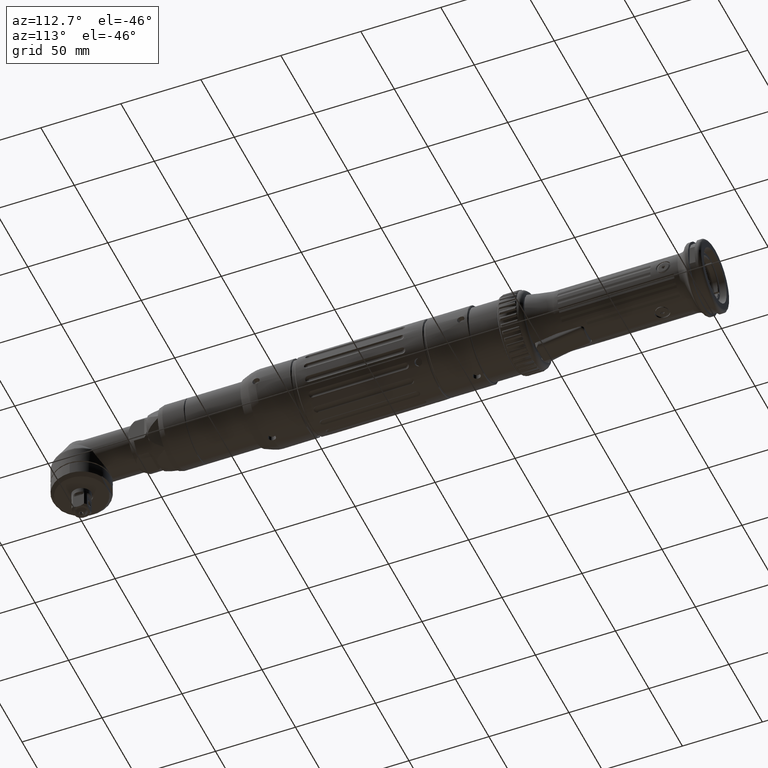
[diagram: clean part render]
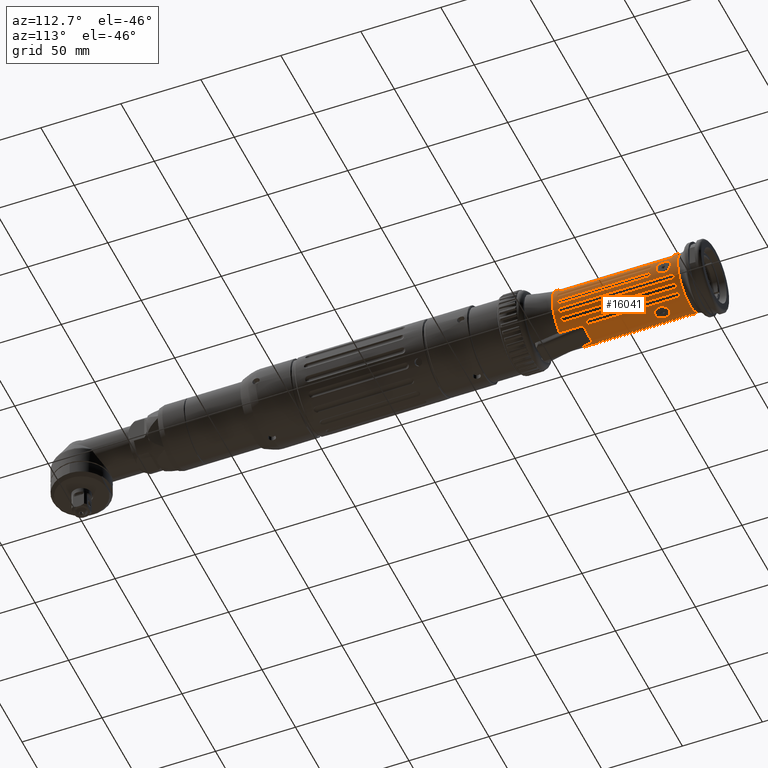
[diagram: same view with one face highlighted and labeled with its STEP entity id]
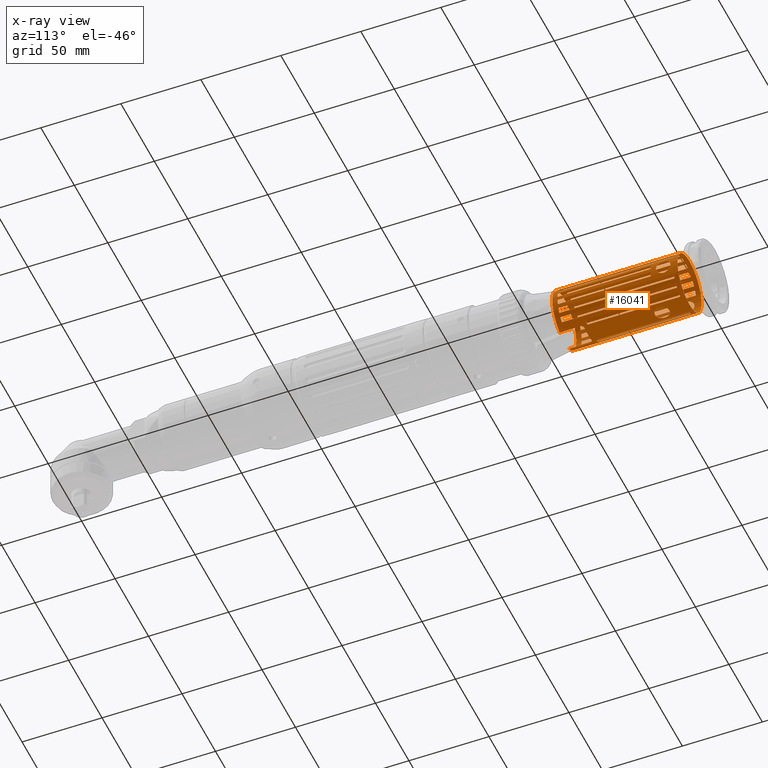
[diagram: x-ray of the same camera — body ghosted, the highlighted face saturated]
A machine part, auxiliary view. The second image highlights one B-rep face of the part: STEP entity #16041.
The next image is the same camera in x-ray: the body ghosted, the highlighted face saturated — about 0% of this face is hidden behind the body in this view.
In plain terms, the highlighted cylindrical surface (bore or boss wall) has radius 18 mm, axis along (-0, 1, -0).
Its self-contained STEP definition (entity closure, byte-faithful):
#788=LINE('',#27451,#1650);
#789=LINE('',#27453,#1651);
#790=LINE('',#27479,#1652);
#791=LINE('',#27480,#1653);
#792=LINE('',#27600,#1654);
#793=LINE('',#27604,#1655);
#794=LINE('',#27608,#1656);
#795=LINE('',#27612,#1657);
#796=LINE('',#27616,#1658);
#797=LINE('',#27620,#1659);
#798=LINE('',#27624,#1660);
#799=LINE('',#27628,#1661);
#800=LINE('',#27632,#1662);
#801=LINE('',#27636,#1663);
#802=LINE('',#27640,#1664);
#803=LINE('',#27644,#1665);
#804=LINE('',#27648,#1666);
#805=LINE('',#27652,#1667);
#806=LINE('',#27656,#1668);
#807=LINE('',#27660,#1669);
#808=LINE('',#27664,#1670);
#809=LINE('',#27668,#1671);
#810=LINE('',#27672,#1672);
#811=LINE('',#27676,#1673);
#812=LINE('',#27680,#1674);
#813=LINE('',#27684,#1675);
#814=LINE('',#27688,#1676);
#815=LINE('',#27692,#1677);
#816=LINE('',#27696,#1678);
#817=LINE('',#27700,#1679);
#818=LINE('',#27704,#1680);
#819=LINE('',#27708,#1681);
#820=LINE('',#27712,#1682);
#821=LINE('',#27716,#1683);
#822=LINE('',#27720,#1684);
#823=LINE('',#27724,#1685);
#824=LINE('',#27728,#1686);
#825=LINE('',#27732,#1687);
#826=LINE('',#27736,#1688);
#827=LINE('',#27740,#1689);
#1650=VECTOR('',#21289,10.);
#1651=VECTOR('',#21290,10.);
#1652=VECTOR('',#21293,10.);
#1653=VECTOR('',#21294,10.);
#1654=VECTOR('',#21295,10.);
#1655=VECTOR('',#21298,10.);
#1656=VECTOR('',#21301,10.);
#1657=VECTOR('',#21304,10.);
#1658=VECTOR('',#21307,10.);
#1659=VECTOR('',#21310,10.);
#1660=VECTOR('',#21313,10.);
#1661=VECTOR('',#21316,10.);
#1662=VECTOR('',#21319,10.);
#1663=VECTOR('',#21322,10.);
#1664=VECTOR('',#21325,10.);
#1665=VECTOR('',#21328,10.);
#1666=VECTOR('',#21331,10.);
#1667=VECTOR('',#21334,10.);
#1668=VECTOR('',#21337,10.);
#1669=VECTOR('',#21340,10.);
#1670=VECTOR('',#21343,10.);
#1671=VECTOR('',#21346,10.);
#1672=VECTOR('',#21349,10.);
#1673=VECTOR('',#21352,10.);
#1674=VECTOR('',#21355,10.);
#1675=VECTOR('',#21358,10.);
#1676=VECTOR('',#21361,10.);
#1677=VECTOR('',#21364,10.);
#1678=VECTOR('',#21367,10.);
#1679=VECTOR('',#21370,10.);
#1680=VECTOR('',#21373,10.);
#1681=VECTOR('',#21376,10.);
#1682=VECTOR('',#21379,10.);
#1683=VECTOR('',#21382,10.);
#1684=VECTOR('',#21385,10.);
#1685=VECTOR('',#21388,10.);
#1686=VECTOR('',#21391,10.);
#1687=VECTOR('',#21394,10.);
#1688=VECTOR('',#21397,10.);
#1689=VECTOR('',#21400,10.);
#2150=B_SPLINE_CURVE_WITH_KNOTS('',3,(#27455,#27456,#27457,#27458,#27459,
#27460,#27461,#27462,#27463,#27464),.UNSPECIFIED.,.F.,.F.,(4,2,2,2,4),(0.305642386572825,
0.385374742263691,0.465107097954556,0.540499165419982,0.615891232885407),
 .UNSPECIFIED.);
#2151=B_SPLINE_CURVE_WITH_KNOTS('',3,(#27468,#27469,#27470,#27471,#27472,
#27473,#27474,#27475,#27476,#27477),.UNSPECIFIED.,.F.,.F.,(4,2,2,2,4),(0.615891232885407,
0.691283300350833,0.766675367816259,0.846407723507124,0.926140079197989),
 .UNSPECIFIED.);
#2152=B_SPLINE_CURVE_WITH_KNOTS('',3,(#27483,#27484,#27485,#27486,#27487,
#27488,#27489,#27490,#27491,#27492,#27493,#27494,#27495,#27496,#27497,#27498,
#27499,#27500),.UNSPECIFIED.,.F.,.F.,(4,2,2,2,2,2,2,2,4),(0.681159195238395,
0.851437088441764,1.02171498164513,1.19201668606096,1.36231839047679,1.53262009489262,
1.70292179930845,1.87319969251182,2.04347758571518),.UNSPECIFIED.);
#2153=B_SPLINE_CURVE_WITH_KNOTS('',3,(#27501,#27502,#27503,#27504,#27505,
#27506,#27507,#27508,#27509,#27510,#27511,#27512,#27513,#27514,#27515,#27516,
#27517,#27518,#27519),.UNSPECIFIED.,.F.,.F.,(4,2,2,2,3,2,2,2,4),(2.04347758571518,
2.21375547891855,2.38403337212192,2.55433507653775,2.72463678095358,2.89493848536941,
3.06524018978524,3.23551808298861,3.40579597619198),.UNSPECIFIED.);
#2154=B_SPLINE_CURVE_WITH_KNOTS('',3,(#27522,#27523,#27524,#27525,#27526,
#27527,#27528,#27529,#27530,#27531,#27532,#27533,#27534,#27535,#27536,#27537,
#27538,#27539),.UNSPECIFIED.,.F.,.F.,(4,2,2,2,2,2,2,2,4),(0.681159195238395,
0.851437088441765,1.02171498164513,1.19201668606096,1.36231839047679,1.53262009489262,
1.70292179930844,1.87319969251181,2.04347758571518),.UNSPECIFIED.);
#2155=B_SPLINE_CURVE_WITH_KNOTS('',3,(#27540,#27541,#27542,#27543,#27544,
#27545,#27546,#27547,#27548,#27549,#27550,#27551,#27552,#27553,#27554,#27555,
#27556,#27557,#27558),.UNSPECIFIED.,.F.,.F.,(4,2,2,2,3,2,2,2,4),(2.04347758571518,
2.21375547891855,2.38403337212192,2.55433507653775,2.72463678095358,2.89493848536941,
3.06524018978523,3.2355180829886,3.40579597619197),.UNSPECIFIED.);
#2156=B_SPLINE_CURVE_WITH_KNOTS('',3,(#27561,#27562,#27563,#27564,#27565,
#27566,#27567,#27568,#27569,#27570,#27571,#27572,#27573,#27574,#27575,#27576,
#27577,#27578),.UNSPECIFIED.,.F.,.F.,(4,2,2,2,2,2,2,2,4),(0.681159195238395,
0.851437088441764,1.02171498164513,1.19201668606096,1.36231839047679,1.53262009489262,
1.70292179930844,1.87319969251181,2.04347758571518),.UNSPECIFIED.);
#2157=B_SPLINE_CURVE_WITH_KNOTS('',3,(#27579,#27580,#27581,#27582,#27583,
#27584,#27585,#27586,#27587,#27588,#27589,#27590,#27591,#27592,#27593,#27594,
#27595,#27596,#27597),.UNSPECIFIED.,.F.,.F.,(4,2,2,2,3,2,2,2,4),(2.04347758571518,
2.21375547891855,2.38403337212192,2.55433507653775,2.72463678095358,2.89493848536941,
3.06524018978523,3.2355180829886,3.40579597619197),.UNSPECIFIED.);
#2332=CYLINDRICAL_SURFACE('',#17629,18.);
#2613=FACE_BOUND('',#4371,.T.);
#2614=FACE_BOUND('',#4372,.T.);
#2615=FACE_BOUND('',#4373,.T.);
#2616=FACE_BOUND('',#4374,.T.);
#2617=FACE_BOUND('',#4375,.T.);
#2618=FACE_BOUND('',#4376,.T.);
#2619=FACE_BOUND('',#4377,.T.);
#2620=FACE_BOUND('',#4378,.T.);
#2621=FACE_BOUND('',#4379,.T.);
#2622=FACE_BOUND('',#4380,.T.);
#2623=FACE_BOUND('',#4381,.T.);
#2624=FACE_BOUND('',#4382,.T.);
#2625=FACE_BOUND('',#4383,.T.);
#2626=FACE_BOUND('',#4384,.T.);
#2627=FACE_BOUND('',#4385,.T.);
#2628=FACE_BOUND('',#4386,.T.);
#2629=FACE_BOUND('',#4387,.T.);
#2630=FACE_BOUND('',#4388,.T.);
#2631=FACE_BOUND('',#4389,.T.);
#2632=FACE_BOUND('',#4390,.T.);
#2633=FACE_BOUND('',#4391,.T.);
#2634=FACE_BOUND('',#4392,.T.);
#3288=FACE_OUTER_BOUND('',#4370,.T.);
#4370=EDGE_LOOP('',(#11940,#11941,#11942,#11943,#11944,#11945,#11946,#11947));
#4371=EDGE_LOOP('',(#11948,#11949));
#4372=EDGE_LOOP('',(#11950,#11951));
#4373=EDGE_LOOP('',(#11952,#11953));
#4374=EDGE_LOOP('',(#11954,#11955,#11956,#11957));
#4375=EDGE_LOOP('',(#11958,#11959,#11960,#11961));
#4376=EDGE_LOOP('',(#11962,#11963,#11964,#11965));
#4377=EDGE_LOOP('',(#11966,#11967,#11968,#11969));
#4378=EDGE_LOOP('',(#11970,#11971,#11972,#11973));
#4379=EDGE_LOOP('',(#11974,#11975,#11976,#11977));
#4380=EDGE_LOOP('',(#11978,#11979,#11980,#11981));
#4381=EDGE_LOOP('',(#11982,#11983,#11984,#11985));
#4382=EDGE_LOOP('',(#11986,#11987,#11988,#11989));
#4383=EDGE_LOOP('',(#11990,#11991,#11992,#11993));
#4384=EDGE_LOOP('',(#11994,#11995,#11996,#11997));
#4385=EDGE_LOOP('',(#11998,#11999,#12000,#12001));
#4386=EDGE_LOOP('',(#12002,#12003,#12004,#12005));
#4387=EDGE_LOOP('',(#12006,#12007,#12008,#12009));
#4388=EDGE_LOOP('',(#12010,#12011,#12012,#12013));
#4389=EDGE_LOOP('',(#12014,#12015,#12016,#12017));
#4390=EDGE_LOOP('',(#12018,#12019,#12020,#12021));
#4391=EDGE_LOOP('',(#12022,#12023,#12024,#12025));
#4392=EDGE_LOOP('',(#12026));
#5565=CIRCLE('',#17621,18.);
#5569=CIRCLE('',#17630,18.);
#5570=CIRCLE('',#17631,18.);
#5571=CIRCLE('',#17632,18.);
#5572=CIRCLE('',#17633,18.);
#5573=CIRCLE('',#17634,18.);
#5574=CIRCLE('',#17635,18.);
#5575=CIRCLE('',#17636,18.);
#5576=CIRCLE('',#17637,18.);
#5577=CIRCLE('',#17638,18.);
#5578=CIRCLE('',#17639,18.);
#5579=CIRCLE('',#17640,18.);
#5580=CIRCLE('',#17641,18.);
#5581=CIRCLE('',#17642,18.);
#5582=CIRCLE('',#17643,18.);
#5583=CIRCLE('',#17644,18.);
#5584=CIRCLE('',#17645,18.);
#5585=CIRCLE('',#17646,18.);
#5586=CIRCLE('',#17647,18.);
#5587=CIRCLE('',#17648,18.);
#5588=CIRCLE('',#17649,18.);
#5589=CIRCLE('',#17650,18.);
#5590=CIRCLE('',#17651,18.);
#5591=CIRCLE('',#17652,18.);
#5592=CIRCLE('',#17653,18.);
#5593=CIRCLE('',#17654,18.);
#5594=CIRCLE('',#17655,18.);
#5595=CIRCLE('',#17656,18.);
#5596=CIRCLE('',#17657,18.);
#5597=CIRCLE('',#17658,18.);
#5598=CIRCLE('',#17659,18.);
#5599=CIRCLE('',#17660,18.);
#5600=CIRCLE('',#17661,18.);
#5601=CIRCLE('',#17662,18.);
#5602=CIRCLE('',#17663,18.);
#5603=CIRCLE('',#17664,18.);
#5604=CIRCLE('',#17665,18.);
#5605=CIRCLE('',#17666,18.);
#5606=CIRCLE('',#17667,18.);
#6822=VERTEX_POINT('',#27401);
#6831=VERTEX_POINT('',#27447);
#6832=VERTEX_POINT('',#27448);
#6833=VERTEX_POINT('',#27450);
#6834=VERTEX_POINT('',#27452);
#6835=VERTEX_POINT('',#27454);
#6836=VERTEX_POINT('',#27465);
#6837=VERTEX_POINT('',#27467);
#6838=VERTEX_POINT('',#27478);
#6839=VERTEX_POINT('',#27481);
#6840=VERTEX_POINT('',#27482);
#6841=VERTEX_POINT('',#27520);
#6842=VERTEX_POINT('',#27521);
#6843=VERTEX_POINT('',#27559);
#6844=VERTEX_POINT('',#27560);
#6845=VERTEX_POINT('',#27598);
#6846=VERTEX_POINT('',#27599);
#6847=VERTEX_POINT('',#27601);
#6848=VERTEX_POINT('',#27603);
#6849=VERTEX_POINT('',#27606);
#6850=VERTEX_POINT('',#27607);
#6851=VERTEX_POINT('',#27609);
#6852=VERTEX_POINT('',#27611);
#6853=VERTEX_POINT('',#27614);
#6854=VERTEX_POINT('',#27615);
#6855=VERTEX_POINT('',#27617);
#6856=VERTEX_POINT('',#27619);
#6857=VERTEX_POINT('',#27622);
#6858=VERTEX_POINT('',#27623);
#6859=VERTEX_POINT('',#27625);
#6860=VERTEX_POINT('',#27627);
#6861=VERTEX_POINT('',#27630);
#6862=VERTEX_POINT('',#27631);
#6863=VERTEX_POINT('',#27633);
#6864=VERTEX_POINT('',#27635);
#6865=VERTEX_POINT('',#27638);
#6866=VERTEX_POINT('',#27639);
#6867=VERTEX_POINT('',#27641);
#6868=VERTEX_POINT('',#27643);
#6869=VERTEX_POINT('',#27646);
#6870=VERTEX_POINT('',#27647);
#6871=VERTEX_POINT('',#27649);
#6872=VERTEX_POINT('',#27651);
#6873=VERTEX_POINT('',#27654);
#6874=VERTEX_POINT('',#27655);
#6875=VERTEX_POINT('',#27657);
#6876=VERTEX_POINT('',#27659);
#6877=VERTEX_POINT('',#27662);
#6878=VERTEX_POINT('',#27663);
#6879=VERTEX_POINT('',#27665);
#6880=VERTEX_POINT('',#27667);
#6881=VERTEX_POINT('',#27670);
#6882=VERTEX_POINT('',#27671);
#6883=VERTEX_POINT('',#27673);
#6884=VERTEX_POINT('',#27675);
#6885=VERTEX_POINT('',#27678);
#6886=VERTEX_POINT('',#27679);
#6887=VERTEX_POINT('',#27681);
#6888=VERTEX_POINT('',#27683);
#6889=VERTEX_POINT('',#27686);
#6890=VERTEX_POINT('',#27687);
#6891=VERTEX_POINT('',#27689);
#6892=VERTEX_POINT('',#27691);
#6893=VERTEX_POINT('',#27694);
#6894=VERTEX_POINT('',#27695);
#6895=VERTEX_POINT('',#27697);
#6896=VERTEX_POINT('',#27699);
#6897=VERTEX_POINT('',#27702);
#6898=VERTEX_POINT('',#27703);
#6899=VERTEX_POINT('',#27705);
#6900=VERTEX_POINT('',#27707);
#6901=VERTEX_POINT('',#27710);
#6902=VERTEX_POINT('',#27711);
#6903=VERTEX_POINT('',#27713);
#6904=VERTEX_POINT('',#27715);
#6905=VERTEX_POINT('',#27718);
#6906=VERTEX_POINT('',#27719);
#6907=VERTEX_POINT('',#27721);
#6908=VERTEX_POINT('',#27723);
#6909=VERTEX_POINT('',#27726);
#6910=VERTEX_POINT('',#27727);
#6911=VERTEX_POINT('',#27729);
#6912=VERTEX_POINT('',#27731);
#6913=VERTEX_POINT('',#27734);
#6914=VERTEX_POINT('',#27735);
#6915=VERTEX_POINT('',#27737);
#6916=VERTEX_POINT('',#27739);
#8672=EDGE_CURVE('',#6822,#6822,#5565,.T.);
#8686=EDGE_CURVE('',#6831,#6832,#5569,.T.);
#8687=EDGE_CURVE('',#6831,#6833,#788,.T.);
#8688=EDGE_CURVE('',#6833,#6834,#789,.T.);
#8689=EDGE_CURVE('',#6835,#6834,#2150,.T.);
#8690=EDGE_CURVE('',#6835,#6836,#5570,.T.);
#8691=EDGE_CURVE('',#6837,#6836,#2151,.T.);
#8692=EDGE_CURVE('',#6837,#6838,#790,.T.);
#8693=EDGE_CURVE('',#6838,#6832,#791,.T.);
#8694=EDGE_CURVE('',#6839,#6840,#2152,.T.);
#8695=EDGE_CURVE('',#6840,#6839,#2153,.T.);
#8696=EDGE_CURVE('',#6841,#6842,#2154,.T.);
#8697=EDGE_CURVE('',#6842,#6841,#2155,.T.);
#8698=EDGE_CURVE('',#6843,#6844,#2156,.T.);
#8699=EDGE_CURVE('',#6844,#6843,#2157,.T.);
#8700=EDGE_CURVE('',#6845,#6846,#792,.T.);
#8701=EDGE_CURVE('',#6846,#6847,#5571,.T.);
#8702=EDGE_CURVE('',#6847,#6848,#793,.T.);
#8703=EDGE_CURVE('',#6848,#6845,#5572,.T.);
#8704=EDGE_CURVE('',#6849,#6850,#794,.T.);
#8705=EDGE_CURVE('',#6850,#6851,#5573,.T.);
#8706=EDGE_CURVE('',#6851,#6852,#795,.T.);
#8707=EDGE_CURVE('',#6852,#6849,#5574,.T.);
#8708=EDGE_CURVE('',#6853,#6854,#796,.T.);
#8709=EDGE_CURVE('',#6854,#6855,#5575,.T.);
#8710=EDGE_CURVE('',#6855,#6856,#797,.T.);
#8711=EDGE_CURVE('',#6856,#6853,#5576,.T.);
#8712=EDGE_CURVE('',#6857,#6858,#798,.T.);
#8713=EDGE_CURVE('',#6858,#6859,#5577,.T.);
#8714=EDGE_CURVE('',#6859,#6860,#799,.T.);
#8715=EDGE_CURVE('',#6860,#6857,#5578,.T.);
#8716=EDGE_CURVE('',#6861,#6862,#800,.T.);
#8717=EDGE_CURVE('',#6862,#6863,#5579,.T.);
#8718=EDGE_CURVE('',#6863,#6864,#801,.T.);
#8719=EDGE_CURVE('',#6864,#6861,#5580,.T.);
#8720=EDGE_CURVE('',#6865,#6866,#802,.T.);
#8721=EDGE_CURVE('',#6866,#6867,#5581,.T.);
#8722=EDGE_CURVE('',#6867,#6868,#803,.T.);
#8723=EDGE_CURVE('',#6868,#6865,#5582,.T.);
#8724=EDGE_CURVE('',#6869,#6870,#804,.T.);
#8725=EDGE_CURVE('',#6870,#6871,#5583,.T.);
#8726=EDGE_CURVE('',#6871,#6872,#805,.T.);
#8727=EDGE_CURVE('',#6872,#6869,#5584,.T.);
#8728=EDGE_CURVE('',#6873,#6874,#806,.T.);
#8729=EDGE_CURVE('',#6874,#6875,#5585,.T.);
#8730=EDGE_CURVE('',#6875,#6876,#807,.T.);
#8731=EDGE_CURVE('',#6876,#6873,#5586,.T.);
#8732=EDGE_CURVE('',#6877,#6878,#808,.T.);
#8733=EDGE_CURVE('',#6878,#6879,#5587,.T.);
#8734=EDGE_CURVE('',#6879,#6880,#809,.T.);
#8735=EDGE_CURVE('',#6880,#6877,#5588,.T.);
#8736=EDGE_CURVE('',#6881,#6882,#810,.T.);
#8737=EDGE_CURVE('',#6882,#6883,#5589,.T.);
#8738=EDGE_CURVE('',#6883,#6884,#811,.T.);
#8739=EDGE_CURVE('',#6884,#6881,#5590,.T.);
#8740=EDGE_CURVE('',#6885,#6886,#812,.T.);
#8741=EDGE_CURVE('',#6886,#6887,#5591,.T.);
#8742=EDGE_CURVE('',#6887,#6888,#813,.T.);
#8743=EDGE_CURVE('',#6888,#6885,#5592,.T.);
#8744=EDGE_CURVE('',#6889,#6890,#814,.T.);
#8745=EDGE_CURVE('',#6890,#6891,#5593,.T.);
#8746=EDGE_CURVE('',#6891,#6892,#815,.T.);
#8747=EDGE_CURVE('',#6892,#6889,#5594,.T.);
#8748=EDGE_CURVE('',#6893,#6894,#816,.T.);
#8749=EDGE_CURVE('',#6894,#6895,#5595,.T.);
#8750=EDGE_CURVE('',#6895,#6896,#817,.T.);
#8751=EDGE_CURVE('',#6896,#6893,#5596,.T.);
#8752=EDGE_CURVE('',#6897,#6898,#818,.T.);
#8753=EDGE_CURVE('',#6898,#6899,#5597,.T.);
#8754=EDGE_CURVE('',#6899,#6900,#819,.T.);
#8755=EDGE_CURVE('',#6900,#6897,#5598,.T.);
#8756=EDGE_CURVE('',#6901,#6902,#820,.T.);
#8757=EDGE_CURVE('',#6902,#6903,#5599,.T.);
#8758=EDGE_CURVE('',#6903,#6904,#821,.T.);
#8759=EDGE_CURVE('',#6904,#6901,#5600,.T.);
#8760=EDGE_CURVE('',#6905,#6906,#822,.T.);
#8761=EDGE_CURVE('',#6906,#6907,#5601,.T.);
#8762=EDGE_CURVE('',#6907,#6908,#823,.T.);
#8763=EDGE_CURVE('',#6908,#6905,#5602,.T.);
#8764=EDGE_CURVE('',#6909,#6910,#824,.T.);
#8765=EDGE_CURVE('',#6910,#6911,#5603,.T.);
#8766=EDGE_CURVE('',#6911,#6912,#825,.T.);
#8767=EDGE_CURVE('',#6912,#6909,#5604,.T.);
#8768=EDGE_CURVE('',#6913,#6914,#826,.T.);
#8769=EDGE_CURVE('',#6914,#6915,#5605,.T.);
#8770=EDGE_CURVE('',#6915,#6916,#827,.T.);
#8771=EDGE_CURVE('',#6916,#6913,#5606,.T.);
#11940=ORIENTED_EDGE('',*,*,#8686,.F.);
#11941=ORIENTED_EDGE('',*,*,#8687,.T.);
#11942=ORIENTED_EDGE('',*,*,#8688,.T.);
#11943=ORIENTED_EDGE('',*,*,#8689,.F.);
#11944=ORIENTED_EDGE('',*,*,#8690,.T.);
#11945=ORIENTED_EDGE('',*,*,#8691,.F.);
#11946=ORIENTED_EDGE('',*,*,#8692,.T.);
#11947=ORIENTED_EDGE('',*,*,#8693,.T.);
#11948=ORIENTED_EDGE('',*,*,#8694,.T.);
#11949=ORIENTED_EDGE('',*,*,#8695,.T.);
#11950=ORIENTED_EDGE('',*,*,#8696,.T.);
#11951=ORIENTED_EDGE('',*,*,#8697,.T.);
#11952=ORIENTED_EDGE('',*,*,#8698,.T.);
#11953=ORIENTED_EDGE('',*,*,#8699,.T.);
#11954=ORIENTED_EDGE('',*,*,#8700,.T.);
#11955=ORIENTED_EDGE('',*,*,#8701,.T.);
#11956=ORIENTED_EDGE('',*,*,#8702,.T.);
#11957=ORIENTED_EDGE('',*,*,#8703,.T.);
#11958=ORIENTED_EDGE('',*,*,#8704,.T.);
#11959=ORIENTED_EDGE('',*,*,#8705,.T.);
#11960=ORIENTED_EDGE('',*,*,#8706,.T.);
#11961=ORIENTED_EDGE('',*,*,#8707,.T.);
#11962=ORIENTED_EDGE('',*,*,#8708,.T.);
#11963=ORIENTED_EDGE('',*,*,#8709,.T.);
#11964=ORIENTED_EDGE('',*,*,#8710,.T.);
#11965=ORIENTED_EDGE('',*,*,#8711,.T.);
#11966=ORIENTED_EDGE('',*,*,#8712,.T.);
#11967=ORIENTED_EDGE('',*,*,#8713,.T.);
#11968=ORIENTED_EDGE('',*,*,#8714,.T.);
#11969=ORIENTED_EDGE('',*,*,#8715,.T.);
#11970=ORIENTED_EDGE('',*,*,#8716,.T.);
#11971=ORIENTED_EDGE('',*,*,#8717,.T.);
#11972=ORIENTED_EDGE('',*,*,#8718,.T.);
#11973=ORIENTED_EDGE('',*,*,#8719,.T.);
#11974=ORIENTED_EDGE('',*,*,#8720,.T.);
#11975=ORIENTED_EDGE('',*,*,#8721,.T.);
#11976=ORIENTED_EDGE('',*,*,#8722,.T.);
#11977=ORIENTED_EDGE('',*,*,#8723,.T.);
#11978=ORIENTED_EDGE('',*,*,#8724,.T.);
#11979=ORIENTED_EDGE('',*,*,#8725,.T.);
#11980=ORIENTED_EDGE('',*,*,#8726,.T.);
#11981=ORIENTED_EDGE('',*,*,#8727,.T.);
#11982=ORIENTED_EDGE('',*,*,#8728,.T.);
#11983=ORIENTED_EDGE('',*,*,#8729,.T.);
#11984=ORIENTED_EDGE('',*,*,#8730,.T.);
#11985=ORIENTED_EDGE('',*,*,#8731,.T.);
#11986=ORIENTED_EDGE('',*,*,#8732,.T.);
#11987=ORIENTED_EDGE('',*,*,#8733,.T.);
#11988=ORIENTED_EDGE('',*,*,#8734,.T.);
#11989=ORIENTED_EDGE('',*,*,#8735,.T.);
#11990=ORIENTED_EDGE('',*,*,#8736,.T.);
#11991=ORIENTED_EDGE('',*,*,#8737,.T.);
#11992=ORIENTED_EDGE('',*,*,#8738,.T.);
#11993=ORIENTED_EDGE('',*,*,#8739,.T.);
#11994=ORIENTED_EDGE('',*,*,#8740,.T.);
#11995=ORIENTED_EDGE('',*,*,#8741,.T.);
#11996=ORIENTED_EDGE('',*,*,#8742,.T.);
#11997=ORIENTED_EDGE('',*,*,#8743,.T.);
#11998=ORIENTED_EDGE('',*,*,#8744,.T.);
#11999=ORIENTED_EDGE('',*,*,#8745,.T.);
#12000=ORIENTED_EDGE('',*,*,#8746,.T.);
#12001=ORIENTED_EDGE('',*,*,#8747,.T.);
#12002=ORIENTED_EDGE('',*,*,#8748,.T.);
#12003=ORIENTED_EDGE('',*,*,#8749,.T.);
#12004=ORIENTED_EDGE('',*,*,#8750,.T.);
#12005=ORIENTED_EDGE('',*,*,#8751,.T.);
#12006=ORIENTED_EDGE('',*,*,#8752,.T.);
#12007=ORIENTED_EDGE('',*,*,#8753,.T.);
#12008=ORIENTED_EDGE('',*,*,#8754,.T.);
#12009=ORIENTED_EDGE('',*,*,#8755,.T.);
#12010=ORIENTED_EDGE('',*,*,#8756,.T.);
#12011=ORIENTED_EDGE('',*,*,#8757,.T.);
#12012=ORIENTED_EDGE('',*,*,#8758,.T.);
#12013=ORIENTED_EDGE('',*,*,#8759,.T.);
#12014=ORIENTED_EDGE('',*,*,#8760,.T.);
#12015=ORIENTED_EDGE('',*,*,#8761,.T.);
#12016=ORIENTED_EDGE('',*,*,#8762,.T.);
#12017=ORIENTED_EDGE('',*,*,#8763,.T.);
#12018=ORIENTED_EDGE('',*,*,#8764,.T.);
#12019=ORIENTED_EDGE('',*,*,#8765,.T.);
#12020=ORIENTED_EDGE('',*,*,#8766,.T.);
#12021=ORIENTED_EDGE('',*,*,#8767,.T.);
#12022=ORIENTED_EDGE('',*,*,#8768,.T.);
#12023=ORIENTED_EDGE('',*,*,#8769,.T.);
#12024=ORIENTED_EDGE('',*,*,#8770,.T.);
#12025=ORIENTED_EDGE('',*,*,#8771,.T.);
#12026=ORIENTED_EDGE('',*,*,#8672,.F.);
#16041=ADVANCED_FACE('',(#3288,#2613,#2614,#2615,#2616,#2617,#2618,#2619,
#2620,#2621,#2622,#2623,#2624,#2625,#2626,#2627,#2628,#2629,#2630,#2631,
#2632,#2633,#2634),#2332,.T.);
#17621=AXIS2_PLACEMENT_3D('',#27402,#21261,#21262);
#17629=AXIS2_PLACEMENT_3D('',#27446,#21285,#21286);
#17630=AXIS2_PLACEMENT_3D('',#27449,#21287,#21288);
#17631=AXIS2_PLACEMENT_3D('',#27466,#21291,#21292);
#17632=AXIS2_PLACEMENT_3D('',#27602,#21296,#21297);
#17633=AXIS2_PLACEMENT_3D('',#27605,#21299,#21300);
#17634=AXIS2_PLACEMENT_3D('',#27610,#21302,#21303);
#17635=AXIS2_PLACEMENT_3D('',#27613,#21305,#21306);
#17636=AXIS2_PLACEMENT_3D('',#27618,#21308,#21309);
#17637=AXIS2_PLACEMENT_3D('',#27621,#21311,#21312);
#17638=AXIS2_PLACEMENT_3D('',#27626,#21314,#21315);
#17639=AXIS2_PLACEMENT_3D('',#27629,#21317,#21318);
#17640=AXIS2_PLACEMENT_3D('',#27634,#21320,#21321);
#17641=AXIS2_PLACEMENT_3D('',#27637,#21323,#21324);
#17642=AXIS2_PLACEMENT_3D('',#27642,#21326,#21327);
#17643=AXIS2_PLACEMENT_3D('',#27645,#21329,#21330);
#17644=AXIS2_PLACEMENT_3D('',#27650,#21332,#21333);
#17645=AXIS2_PLACEMENT_3D('',#27653,#21335,#21336);
#17646=AXIS2_PLACEMENT_3D('',#27658,#21338,#21339);
#17647=AXIS2_PLACEMENT_3D('',#27661,#21341,#21342);
#17648=AXIS2_PLACEMENT_3D('',#27666,#21344,#21345);
#17649=AXIS2_PLACEMENT_3D('',#27669,#21347,#21348);
#17650=AXIS2_PLACEMENT_3D('',#27674,#21350,#21351);
#17651=AXIS2_PLACEMENT_3D('',#27677,#21353,#21354);
#17652=AXIS2_PLACEMENT_3D('',#27682,#21356,#21357);
#17653=AXIS2_PLACEMENT_3D('',#27685,#21359,#21360);
#17654=AXIS2_PLACEMENT_3D('',#27690,#21362,#21363);
#17655=AXIS2_PLACEMENT_3D('',#27693,#21365,#21366);
#17656=AXIS2_PLACEMENT_3D('',#27698,#21368,#21369);
#17657=AXIS2_PLACEMENT_3D('',#27701,#21371,#21372);
#17658=AXIS2_PLACEMENT_3D('',#27706,#21374,#21375);
#17659=AXIS2_PLACEMENT_3D('',#27709,#21377,#21378);
#17660=AXIS2_PLACEMENT_3D('',#27714,#21380,#21381);
#17661=AXIS2_PLACEMENT_3D('',#27717,#21383,#21384);
#17662=AXIS2_PLACEMENT_3D('',#27722,#21386,#21387);
#17663=AXIS2_PLACEMENT_3D('',#27725,#21389,#21390);
#17664=AXIS2_PLACEMENT_3D('',#27730,#21392,#21393);
#17665=AXIS2_PLACEMENT_3D('',#27733,#21395,#21396);
#17666=AXIS2_PLACEMENT_3D('',#27738,#21398,#21399);
#17667=AXIS2_PLACEMENT_3D('',#27741,#21401,#21402);
#21261=DIRECTION('center_axis',(-6.34403086073544E-16,1.,-1.11372105191445E-15));
#21262=DIRECTION('ref_axis',(-1.,-6.34403086073555E-16,-9.79526914692858E-15));
#21285=DIRECTION('center_axis',(-6.34403086073544E-16,1.,-1.11372105191445E-15));
#21286=DIRECTION('ref_axis',(-9.79526914692858E-15,1.11372105191444E-15,
1.));
#21287=DIRECTION('center_axis',(6.34403086073544E-16,-1.,1.11372105191445E-15));
#21288=DIRECTION('ref_axis',(-1.01014308467154E-14,1.11372105191444E-15,
1.));
#21289=DIRECTION('',(-6.34403086073544E-16,1.,-1.11372105191445E-15));
#21290=DIRECTION('',(-6.34403086073544E-16,1.,-1.11372105191445E-15));
#21291=DIRECTION('center_axis',(-6.34403086073544E-16,1.,-1.11372105191445E-15));
#21292=DIRECTION('ref_axis',(-9.79526914692858E-15,1.11372105191444E-15,
1.));
#21293=DIRECTION('',(6.34403086073544E-16,-1.,1.11372105191445E-15));
#21294=DIRECTION('',(6.34403086073544E-16,-1.,1.11372105191445E-15));
#21295=DIRECTION('',(6.34403086073544E-16,-1.,1.11372105191445E-15));
#21296=DIRECTION('center_axis',(6.34403086073544E-16,-1.,1.11372105191445E-15));
#21297=DIRECTION('ref_axis',(-9.79526914692858E-15,1.11372105191444E-15,
1.));
#21298=DIRECTION('',(-6.34403086073544E-16,1.,-1.11372105191445E-15));
#21299=DIRECTION('center_axis',(-6.34403086073544E-16,1.,-1.11372105191445E-15));
#21300=DIRECTION('ref_axis',(-9.79526914692858E-15,1.11372105191444E-15,
1.));
#21301=DIRECTION('',(-6.34403086073544E-16,1.,-1.11372105191445E-15));
#21302=DIRECTION('center_axis',(-6.34403086073544E-16,1.,-1.11372105191445E-15));
#21303=DIRECTION('ref_axis',(-9.79526914692858E-15,1.11372105191444E-15,
1.));
#21304=DIRECTION('',(6.34403086073544E-16,-1.,1.11372105191445E-15));
#21305=DIRECTION('center_axis',(6.34403086073544E-16,-1.,1.11372105191445E-15));
#21306=DIRECTION('ref_axis',(-9.79526914692858E-15,1.11372105191444E-15,
1.));
#21307=DIRECTION('',(6.34403086073544E-16,-1.,1.11372105191445E-15));
#21308=DIRECTION('center_axis',(6.34403086073544E-16,-1.,1.11372105191445E-15));
#21309=DIRECTION('ref_axis',(-9.79526914692858E-15,1.11372105191444E-15,
1.));
#21310=DIRECTION('',(-6.34403086073544E-16,1.,-1.11372105191445E-15));
#21311=DIRECTION('center_axis',(-6.34403086073544E-16,1.,-1.11372105191445E-15));
#21312=DIRECTION('ref_axis',(-9.79526914692858E-15,1.11372105191444E-15,
1.));
#21313=DIRECTION('',(6.34403086073544E-16,-1.,1.11372105191445E-15));
#21314=DIRECTION('center_axis',(6.34403086073544E-16,-1.,1.11372105191445E-15));
#21315=DIRECTION('ref_axis',(-9.79526914692858E-15,1.11372105191444E-15,
1.));
#21316=DIRECTION('',(-6.34403086073544E-16,1.,-1.11372105191445E-15));
#21317=DIRECTION('center_axis',(-6.34403086073544E-16,1.,-1.11372105191445E-15));
#21318=DIRECTION('ref_axis',(-9.79526914692858E-15,1.11372105191444E-15,
1.));
#21319=DIRECTION('',(6.34403086073544E-16,-1.,1.11372105191445E-15));
#21320=DIRECTION('center_axis',(6.34403086073544E-16,-1.,1.11372105191445E-15));
#21321=DIRECTION('ref_axis',(-9.79526914692858E-15,1.11372105191444E-15,
1.));
#21322=DIRECTION('',(-6.34403086073544E-16,1.,-1.11372105191445E-15));
#21323=DIRECTION('center_axis',(-6.34403086073544E-16,1.,-1.11372105191445E-15));
#21324=DIRECTION('ref_axis',(-9.79526914692858E-15,1.11372105191444E-15,
1.));
#21325=DIRECTION('',(6.34403086073544E-16,-1.,1.11372105191445E-15));
#21326=DIRECTION('center_axis',(6.34403086073544E-16,-1.,1.11372105191445E-15));
#21327=DIRECTION('ref_axis',(-9.79526914692858E-15,1.11372105191444E-15,
1.));
#21328=DIRECTION('',(-6.34403086073544E-16,1.,-1.11372105191445E-15));
#21329=DIRECTION('center_axis',(-6.34403086073544E-16,1.,-1.11372105191445E-15));
#21330=DIRECTION('ref_axis',(-9.79526914692858E-15,1.11372105191444E-15,
1.));
#21331=DIRECTION('',(6.34403086073544E-16,-1.,1.11372105191445E-15));
#21332=DIRECTION('center_axis',(6.34403086073544E-16,-1.,1.11372105191445E-15));
#21333=DIRECTION('ref_axis',(-9.79526914692858E-15,1.11372105191444E-15,
1.));
#21334=DIRECTION('',(-6.34403086073544E-16,1.,-1.11372105191445E-15));
#21335=DIRECTION('center_axis',(-6.34403086073544E-16,1.,-1.11372105191445E-15));
#21336=DIRECTION('ref_axis',(-9.79526914692858E-15,1.11372105191444E-15,
1.));
#21337=DIRECTION('',(6.34403086073544E-16,-1.,1.11372105191445E-15));
#21338=DIRECTION('center_axis',(6.34403086073544E-16,-1.,1.11372105191445E-15));
#21339=DIRECTION('ref_axis',(-9.79526914692858E-15,1.11372105191444E-15,
1.));
#21340=DIRECTION('',(-6.34403086073544E-16,1.,-1.11372105191445E-15));
#21341=DIRECTION('center_axis',(-6.34403086073544E-16,1.,-1.11372105191445E-15));
#21342=DIRECTION('ref_axis',(-9.79526914692858E-15,1.11372105191444E-15,
1.));
#21343=DIRECTION('',(6.34403086073544E-16,-1.,1.11372105191445E-15));
#21344=DIRECTION('center_axis',(6.34403086073544E-16,-1.,1.11372105191445E-15));
#21345=DIRECTION('ref_axis',(-9.79526914692858E-15,1.11372105191444E-15,
1.));
#21346=DIRECTION('',(-6.34403086073544E-16,1.,-1.11372105191445E-15));
#21347=DIRECTION('center_axis',(-6.34403086073544E-16,1.,-1.11372105191445E-15));
#21348=DIRECTION('ref_axis',(-9.79526914692858E-15,1.11372105191444E-15,
1.));
#21349=DIRECTION('',(6.34403086073544E-16,-1.,1.11372105191445E-15));
#21350=DIRECTION('center_axis',(6.34403086073544E-16,-1.,1.11372105191445E-15));
#21351=DIRECTION('ref_axis',(-9.79526914692858E-15,1.11372105191444E-15,
1.));
#21352=DIRECTION('',(-6.34403086073544E-16,1.,-1.11372105191445E-15));
#21353=DIRECTION('center_axis',(-6.34403086073544E-16,1.,-1.11372105191445E-15));
#21354=DIRECTION('ref_axis',(-9.79526914692858E-15,1.11372105191444E-15,
1.));
#21355=DIRECTION('',(6.34403086073544E-16,-1.,1.11372105191445E-15));
#21356=DIRECTION('center_axis',(6.34403086073544E-16,-1.,1.11372105191445E-15));
#21357=DIRECTION('ref_axis',(-9.79526914692858E-15,1.11372105191444E-15,
1.));
#21358=DIRECTION('',(-6.34403086073544E-16,1.,-1.11372105191445E-15));
#21359=DIRECTION('center_axis',(-6.34403086073544E-16,1.,-1.11372105191445E-15));
#21360=DIRECTION('ref_axis',(-9.79526914692858E-15,1.11372105191444E-15,
1.));
#21361=DIRECTION('',(6.34403086073544E-16,-1.,1.11372105191445E-15));
#21362=DIRECTION('center_axis',(6.34403086073544E-16,-1.,1.11372105191445E-15));
#21363=DIRECTION('ref_axis',(-9.79526914692858E-15,1.11372105191444E-15,
1.));
#21364=DIRECTION('',(-6.34403086073544E-16,1.,-1.11372105191445E-15));
#21365=DIRECTION('center_axis',(-6.34403086073544E-16,1.,-1.11372105191445E-15));
#21366=DIRECTION('ref_axis',(-9.79526914692858E-15,1.11372105191444E-15,
1.));
#21367=DIRECTION('',(6.34403086073544E-16,-1.,1.11372105191445E-15));
#21368=DIRECTION('center_axis',(6.34403086073544E-16,-1.,1.11372105191445E-15));
#21369=DIRECTION('ref_axis',(-9.79526914692858E-15,1.11372105191444E-15,
1.));
#21370=DIRECTION('',(-6.34403086073544E-16,1.,-1.11372105191445E-15));
#21371=DIRECTION('center_axis',(-6.34403086073544E-16,1.,-1.11372105191445E-15));
#21372=DIRECTION('ref_axis',(-9.79526914692858E-15,1.11372105191444E-15,
1.));
#21373=DIRECTION('',(6.34403086073544E-16,-1.,1.11372105191445E-15));
#21374=DIRECTION('center_axis',(6.34403086073544E-16,-1.,1.11372105191445E-15));
#21375=DIRECTION('ref_axis',(-9.79526914692858E-15,1.11372105191444E-15,
1.));
#21376=DIRECTION('',(-6.34403086073544E-16,1.,-1.11372105191445E-15));
#21377=DIRECTION('center_axis',(-6.34403086073544E-16,1.,-1.11372105191445E-15));
#21378=DIRECTION('ref_axis',(-9.79526914692858E-15,1.11372105191444E-15,
1.));
#21379=DIRECTION('',(6.34403086073544E-16,-1.,1.11372105191445E-15));
#21380=DIRECTION('center_axis',(6.34403086073544E-16,-1.,1.11372105191445E-15));
#21381=DIRECTION('ref_axis',(-9.79526914692858E-15,1.11372105191444E-15,
1.));
#21382=DIRECTION('',(-6.34403086073544E-16,1.,-1.11372105191445E-15));
#21383=DIRECTION('center_axis',(-6.34403086073544E-16,1.,-1.11372105191445E-15));
#21384=DIRECTION('ref_axis',(-9.79526914692858E-15,1.11372105191444E-15,
1.));
#21385=DIRECTION('',(6.34403086073544E-16,-1.,1.11372105191445E-15));
#21386=DIRECTION('center_axis',(6.34403086073544E-16,-1.,1.11372105191445E-15));
#21387=DIRECTION('ref_axis',(-9.79526914692858E-15,1.11372105191444E-15,
1.));
#21388=DIRECTION('',(-6.34403086073544E-16,1.,-1.11372105191445E-15));
#21389=DIRECTION('center_axis',(-6.34403086073544E-16,1.,-1.11372105191445E-15));
#21390=DIRECTION('ref_axis',(-9.79526914692858E-15,1.11372105191444E-15,
1.));
#21391=DIRECTION('',(6.34403086073544E-16,-1.,1.11372105191445E-15));
#21392=DIRECTION('center_axis',(6.34403086073544E-16,-1.,1.11372105191445E-15));
#21393=DIRECTION('ref_axis',(-9.79526914692858E-15,1.11372105191444E-15,
1.));
#21394=DIRECTION('',(-6.34403086073544E-16,1.,-1.11372105191445E-15));
#21395=DIRECTION('center_axis',(-6.34403086073544E-16,1.,-1.11372105191445E-15));
#21396=DIRECTION('ref_axis',(-9.79526914692858E-15,1.11372105191444E-15,
1.));
#21397=DIRECTION('',(6.34403086073544E-16,-1.,1.11372105191445E-15));
#21398=DIRECTION('center_axis',(6.34403086073544E-16,-1.,1.11372105191445E-15));
#21399=DIRECTION('ref_axis',(-9.79526914692858E-15,1.11372105191444E-15,
1.));
#21400=DIRECTION('',(-6.34403086073544E-16,1.,-1.11372105191445E-15));
#21401=DIRECTION('center_axis',(-6.34403086073544E-16,1.,-1.11372105191445E-15));
#21402=DIRECTION('ref_axis',(-9.79526914692858E-15,1.11372105191444E-15,
1.));
#27401=CARTESIAN_POINT('',(-3.71917433690428E-13,380.,18.0000000000002));
#27402=CARTESIAN_POINT('Origin',(-1.95602589045713E-13,380.,2.28467205880297E-13));
#27446=CARTESIAN_POINT('Origin',(-1.70226465602772E-13,340.,2.73016047956875E-13));
#27447=CARTESIAN_POINT('',(7.00000000000002,301.655250605964,-16.5831239517766));
#27448=CARTESIAN_POINT('',(-6.99999999999999,301.655250605964,-16.5831239517768));
#27449=CARTESIAN_POINT('Origin',(-1.45900438252479E-13,301.655250605964,
3.15721402587396E-13));
#27450=CARTESIAN_POINT('',(7.00000000000001,313.8,-16.5831239517766));
#27451=CARTESIAN_POINT('',(6.99999999999999,340.,-16.5831239517767));
#27452=CARTESIAN_POINT('',(7.00000000000001,314.6,-16.5831239517766));
#27453=CARTESIAN_POINT('',(6.99999999999999,340.,-16.5831239517767));
#27454=CARTESIAN_POINT('',(5.00000000000001,316.6,-17.2916164657902));
#27455=CARTESIAN_POINT('Ctrl Pts',(5.00000000000001,316.6,-17.2916164657902));
#27456=CARTESIAN_POINT('Ctrl Pts',(5.25531505824454,316.6,-17.2177902105209));
#27457=CARTESIAN_POINT('Ctrl Pts',(5.52615703390819,316.548328008203,-17.1327341676987));
#27458=CARTESIAN_POINT('Ctrl Pts',(6.02371187102343,316.339205907237,-16.9641942611033));
#27459=CARTESIAN_POINT('Ctrl Pts',(6.25053596499693,316.181797370523,-16.8809873243688));
#27460=CARTESIAN_POINT('Ctrl Pts',(6.59976297259695,315.824622290341,-16.7474221928198));
#27461=CARTESIAN_POINT('Ctrl Pts',(6.7494970762792,315.604226885212,-16.6870010527234));
#27462=CARTESIAN_POINT('Ctrl Pts',(6.94968335029781,315.117635188574,-16.604626357784));
#27463=CARTESIAN_POINT('Ctrl Pts',(7.00000000000001,314.851306891551,-16.5831239517766));
#27464=CARTESIAN_POINT('Ctrl Pts',(7.00000000000001,314.6,-16.5831239517766));
#27465=CARTESIAN_POINT('',(-4.99999999999999,316.6,-17.2916164657903));
#27466=CARTESIAN_POINT('Origin',(-1.55381433388651E-13,316.6,2.99077120571673E-13));
#27467=CARTESIAN_POINT('',(-6.99999999999999,314.6,-16.5831239517768));
#27468=CARTESIAN_POINT('Ctrl Pts',(-6.99999999999999,314.6,-16.5831239517768));
#27469=CARTESIAN_POINT('Ctrl Pts',(-6.99999999999999,314.851306891551,-16.5831239517768));
#27470=CARTESIAN_POINT('Ctrl Pts',(-6.94968335029779,315.117635188574,-16.6046263577841));
#27471=CARTESIAN_POINT('Ctrl Pts',(-6.74949707627918,315.604226885212,-16.6870010527235));
#27472=CARTESIAN_POINT('Ctrl Pts',(-6.59976297259693,315.824622290341,-16.7474221928199));
#27473=CARTESIAN_POINT('Ctrl Pts',(-6.25053596499691,316.181797370523,-16.8809873243689));
#27474=CARTESIAN_POINT('Ctrl Pts',(-6.02371187102341,316.339205907237,-16.9641942611034));
#27475=CARTESIAN_POINT('Ctrl Pts',(-5.52615703390817,316.548328008203,-17.1327341676988));
#27476=CARTESIAN_POINT('Ctrl Pts',(-5.25531505824452,316.6,-17.217790210521));
#27477=CARTESIAN_POINT('Ctrl Pts',(-4.99999999999999,316.6,-17.2916164657903));
#27478=CARTESIAN_POINT('',(-6.99999999999999,313.8,-16.5831239517768));
#27479=CARTESIAN_POINT('',(-7.00000000000001,340.,-16.5831239517768));
#27480=CARTESIAN_POINT('',(-7.00000000000001,340.,-16.5831239517768));
#27481=CARTESIAN_POINT('',(-1.13577058250797E-14,367.5,-17.9999999999998));
#27482=CARTESIAN_POINT('',(-5.64807805041789E-15,358.5,-17.9999999999998));
#27483=CARTESIAN_POINT('Ctrl Pts',(-1.17267306976032E-14,367.5,-17.9999999999998));
#27484=CARTESIAN_POINT('Ctrl Pts',(-0.567592977344577,367.5,-17.9999999999998));
#27485=CARTESIAN_POINT('Ctrl Pts',(-1.17139795117424,367.386075169635,-17.9704647044078));
#27486=CARTESIAN_POINT('Ctrl Pts',(-2.27942057070921,366.926075666882,-17.8637626701149));
#27487=CARTESIAN_POINT('Ctrl Pts',(-2.78382972182189,366.580131308857,-17.7880277100483));
#27488=CARTESIAN_POINT('Ctrl Pts',(-3.5801869852162,365.783774045462,-17.6449977232351));
#27489=CARTESIAN_POINT('Ctrl Pts',(-3.92608793302262,365.279388082637,-17.5682015000517));
#27490=CARTESIAN_POINT('Ctrl Pts',(-4.3860557434048,364.171447686047,-17.4590488559556));
#27491=CARTESIAN_POINT('Ctrl Pts',(-4.50000000000001,363.567672348052,-17.4284250579332));
#27492=CARTESIAN_POINT('Ctrl Pts',(-4.50000000000001,362.432327651947,-17.4284250579332));
#27493=CARTESIAN_POINT('Ctrl Pts',(-4.38605574340481,361.828552313953,-17.4590488559556));
#27494=CARTESIAN_POINT('Ctrl Pts',(-3.92608793302262,360.720611917363,-17.5682015000517));
#27495=CARTESIAN_POINT('Ctrl Pts',(-3.58018698521619,360.216225954537,-17.6449977232351));
#27496=CARTESIAN_POINT('Ctrl Pts',(-2.78382972182189,359.419868691143,-17.7880277100483));
#27497=CARTESIAN_POINT('Ctrl Pts',(-2.2794205707092,359.073924333117,-17.8637626701149));
#27498=CARTESIAN_POINT('Ctrl Pts',(-1.17139795117423,358.613924830365,-17.9704647044078));
#27499=CARTESIAN_POINT('Ctrl Pts',(-0.567592977344573,358.5,-17.9999999999998));
#27500=CARTESIAN_POINT('Ctrl Pts',(-7.84095011141517E-15,358.5,-17.9999999999998));
#27501=CARTESIAN_POINT('Ctrl Pts',(-9.85322934354826E-15,358.5,-17.9999999999998));
#27502=CARTESIAN_POINT('Ctrl Pts',(0.567592977344557,358.5,-17.9999999999997));
#27503=CARTESIAN_POINT('Ctrl Pts',(1.17139795117422,358.613924830365,-17.9704647044078));
#27504=CARTESIAN_POINT('Ctrl Pts',(2.27942057070919,359.073924333117,-17.8637626701149));
#27505=CARTESIAN_POINT('Ctrl Pts',(2.78382972182187,359.419868691143,-17.7880277100482));
#27506=CARTESIAN_POINT('Ctrl Pts',(3.58018698521617,360.216225954537,-17.6449977232351));
#27507=CARTESIAN_POINT('Ctrl Pts',(3.9260879330226,360.720611917363,-17.5682015000516));
#27508=CARTESIAN_POINT('Ctrl Pts',(4.38605574340478,361.828552313953,-17.4590488559555));
#27509=CARTESIAN_POINT('Ctrl Pts',(4.49999999999999,362.432327651947,-17.4284250579331));
#27510=CARTESIAN_POINT('Ctrl Pts',(4.49999999999999,363.,-17.4284250579331));
#27511=CARTESIAN_POINT('Ctrl Pts',(4.49999999999999,363.567672348052,-17.4284250579331));
#27512=CARTESIAN_POINT('Ctrl Pts',(4.38605574340478,364.171447686047,-17.4590488559555));
#27513=CARTESIAN_POINT('Ctrl Pts',(3.9260879330226,365.279388082637,-17.5682015000516));
#27514=CARTESIAN_POINT('Ctrl Pts',(3.58018698521617,365.783774045462,-17.6449977232351));
#27515=CARTESIAN_POINT('Ctrl Pts',(2.78382972182187,366.580131308857,-17.7880277100482));
#27516=CARTESIAN_POINT('Ctrl Pts',(2.27942057070919,366.926075666882,-17.8637626701149));
#27517=CARTESIAN_POINT('Ctrl Pts',(1.17139795117422,367.386075169635,-17.9704647044078));
#27518=CARTESIAN_POINT('Ctrl Pts',(0.567592977344555,367.5,-17.9999999999998));
#27519=CARTESIAN_POINT('Ctrl Pts',(-1.04083408558608E-14,367.5,-17.9999999999998));
#27520=CARTESIAN_POINT('',(-18.0000000000002,375.5,5.71641059691975E-14));
#27521=CARTESIAN_POINT('',(-18.0000000000002,366.5,6.71875954364275E-14));
#27522=CARTESIAN_POINT('Ctrl Pts',(-18.0000000000002,375.5,5.20417042793042E-14));
#27523=CARTESIAN_POINT('Ctrl Pts',(-18.0000000000002,375.5,0.567592977344618));
#27524=CARTESIAN_POINT('Ctrl Pts',(-17.9704647044082,375.386075169635,1.17139795117429));
#27525=CARTESIAN_POINT('Ctrl Pts',(-17.8637626701154,374.926075666883,2.27942057070926));
#27526=CARTESIAN_POINT('Ctrl Pts',(-17.7880277100487,374.580131308857,2.78382972182194));
#27527=CARTESIAN_POINT('Ctrl Pts',(-17.6449977232356,373.783774045463,3.58018698521624));
#27528=CARTESIAN_POINT('Ctrl Pts',(-17.5682015000521,373.279388082637,3.92608793302267));
#27529=CARTESIAN_POINT('Ctrl Pts',(-17.459048855956,372.171447686047,4.38605574340486));
#27530=CARTESIAN_POINT('Ctrl Pts',(-17.4284250579336,371.567672348052,4.50000000000007));
#27531=CARTESIAN_POINT('Ctrl Pts',(-17.4284250579336,370.432327651947,4.50000000000007));
#27532=CARTESIAN_POINT('Ctrl Pts',(-17.459048855956,369.828552313953,4.38605574340486));
#27533=CARTESIAN_POINT('Ctrl Pts',(-17.5682015000521,368.720611917363,3.92608793302268));
#27534=CARTESIAN_POINT('Ctrl Pts',(-17.6449977232356,368.216225954537,3.58018698521625));
#27535=CARTESIAN_POINT('Ctrl Pts',(-17.7880277100487,367.419868691143,2.78382972182195));
#27536=CARTESIAN_POINT('Ctrl Pts',(-17.8637626701154,367.073924333117,2.27942057070927));
#27537=CARTESIAN_POINT('Ctrl Pts',(-17.9704647044082,366.613924830365,1.1713979511743));
#27538=CARTESIAN_POINT('Ctrl Pts',(-18.0000000000002,366.5,0.567592977344637));
#27539=CARTESIAN_POINT('Ctrl Pts',(-18.0000000000002,366.5,7.12624403931272E-14));
#27540=CARTESIAN_POINT('Ctrl Pts',(-18.0000000000002,366.5,7.54951656745106E-14));
#27541=CARTESIAN_POINT('Ctrl Pts',(-18.0000000000002,366.5,-0.567592977344489));
#27542=CARTESIAN_POINT('Ctrl Pts',(-17.9704647044082,366.613924830365,-1.17139795117417));
#27543=CARTESIAN_POINT('Ctrl Pts',(-17.8637626701153,367.073924333117,-2.27942057070914));
#27544=CARTESIAN_POINT('Ctrl Pts',(-17.7880277100487,367.419868691143,-2.78382972182181));
#27545=CARTESIAN_POINT('Ctrl Pts',(-17.6449977232355,368.216225954537,-3.58018698521611));
#27546=CARTESIAN_POINT('Ctrl Pts',(-17.568201500052,368.720611917363,-3.92608793302254));
#27547=CARTESIAN_POINT('Ctrl Pts',(-17.459048855956,369.828552313953,-4.38605574340472));
#27548=CARTESIAN_POINT('Ctrl Pts',(-17.4284250579335,370.432327651947,-4.49999999999993));
#27549=CARTESIAN_POINT('Ctrl Pts',(-17.4284250579335,371.,-4.49999999999993));
#27550=CARTESIAN_POINT('Ctrl Pts',(-17.4284250579335,371.567672348052,-4.49999999999993));
#27551=CARTESIAN_POINT('Ctrl Pts',(-17.459048855956,372.171447686047,-4.38605574340473));
#27552=CARTESIAN_POINT('Ctrl Pts',(-17.568201500052,373.279388082637,-3.92608793302254));
#27553=CARTESIAN_POINT('Ctrl Pts',(-17.6449977232355,373.783774045462,-3.58018698521612));
#27554=CARTESIAN_POINT('Ctrl Pts',(-17.7880277100487,374.580131308857,-2.78382972182182));
#27555=CARTESIAN_POINT('Ctrl Pts',(-17.8637626701153,374.926075666883,-2.27942057070914));
#27556=CARTESIAN_POINT('Ctrl Pts',(-17.9704647044082,375.386075169635,-1.17139795117418));
#27557=CARTESIAN_POINT('Ctrl Pts',(-18.0000000000002,375.5,-0.567592977344501));
#27558=CARTESIAN_POINT('Ctrl Pts',(-18.0000000000002,375.5,6.48092690624935E-14));
#27559=CARTESIAN_POINT('',(17.9999999999998,366.5,4.19817284725856E-13));
#27560=CARTESIAN_POINT('',(17.9999999999998,375.5,4.09793795258626E-13));
#27561=CARTESIAN_POINT('Ctrl Pts',(17.9999999999998,366.5,4.2257863874795E-13));
#27562=CARTESIAN_POINT('Ctrl Pts',(17.9999999999998,366.5,0.567592977344988));
#27563=CARTESIAN_POINT('Ctrl Pts',(17.9704647044078,366.613924830365,1.17139795117465));
#27564=CARTESIAN_POINT('Ctrl Pts',(17.863762670115,367.073924333117,2.27942057070962));
#27565=CARTESIAN_POINT('Ctrl Pts',(17.7880277100483,367.419868691143,2.7838297218223));
#27566=CARTESIAN_POINT('Ctrl Pts',(17.6449977232351,368.216225954537,3.5801869852166));
#27567=CARTESIAN_POINT('Ctrl Pts',(17.5682015000516,368.720611917363,3.92608793302302));
#27568=CARTESIAN_POINT('Ctrl Pts',(17.4590488559556,369.828552313953,4.3860557434052));
#27569=CARTESIAN_POINT('Ctrl Pts',(17.4284250579331,370.432327651947,4.50000000000041));
#27570=CARTESIAN_POINT('Ctrl Pts',(17.4284250579331,371.567672348053,4.50000000000041));
#27571=CARTESIAN_POINT('Ctrl Pts',(17.4590488559556,372.171447686047,4.3860557434052));
#27572=CARTESIAN_POINT('Ctrl Pts',(17.5682015000516,373.279388082637,3.92608793302302));
#27573=CARTESIAN_POINT('Ctrl Pts',(17.6449977232351,373.783774045463,3.58018698521659));
#27574=CARTESIAN_POINT('Ctrl Pts',(17.7880277100483,374.580131308857,2.78382972182229));
#27575=CARTESIAN_POINT('Ctrl Pts',(17.8637626701149,374.926075666883,2.27942057070961));
#27576=CARTESIAN_POINT('Ctrl Pts',(17.9704647044078,375.386075169635,1.17139795117464));
#27577=CARTESIAN_POINT('Ctrl Pts',(17.9999999999998,375.5,0.56759297734497));
#27578=CARTESIAN_POINT('Ctrl Pts',(17.9999999999998,375.5,4.04121180963557E-13));
#27579=CARTESIAN_POINT('Ctrl Pts',(17.9999999999998,375.5,4.19109191795997E-13));
#27580=CARTESIAN_POINT('Ctrl Pts',(17.9999999999998,375.5,-0.567592977344147));
#27581=CARTESIAN_POINT('Ctrl Pts',(17.9704647044078,375.386075169635,-1.17139795117382));
#27582=CARTESIAN_POINT('Ctrl Pts',(17.863762670115,374.926075666883,-2.27942057070879));
#27583=CARTESIAN_POINT('Ctrl Pts',(17.7880277100483,374.580131308857,-2.78382972182147));
#27584=CARTESIAN_POINT('Ctrl Pts',(17.6449977232352,373.783774045463,-3.58018698521578));
#27585=CARTESIAN_POINT('Ctrl Pts',(17.5682015000517,373.279388082637,-3.9260879330222));
#27586=CARTESIAN_POINT('Ctrl Pts',(17.4590488559557,372.171447686047,-4.38605574340438));
#27587=CARTESIAN_POINT('Ctrl Pts',(17.4284250579332,371.567672348052,-4.49999999999959));
#27588=CARTESIAN_POINT('Ctrl Pts',(17.4284250579332,371.,-4.49999999999959));
#27589=CARTESIAN_POINT('Ctrl Pts',(17.4284250579332,370.432327651947,-4.49999999999959));
#27590=CARTESIAN_POINT('Ctrl Pts',(17.4590488559557,369.828552313953,-4.38605574340438));
#27591=CARTESIAN_POINT('Ctrl Pts',(17.5682015000517,368.720611917363,-3.9260879330222));
#27592=CARTESIAN_POINT('Ctrl Pts',(17.6449977232352,368.216225954537,-3.58018698521577));
#27593=CARTESIAN_POINT('Ctrl Pts',(17.7880277100483,367.419868691143,-2.78382972182146));
#27594=CARTESIAN_POINT('Ctrl Pts',(17.863762670115,367.073924333117,-2.27942057070879));
#27595=CARTESIAN_POINT('Ctrl Pts',(17.9704647044078,366.613924830365,-1.17139795117381));
#27596=CARTESIAN_POINT('Ctrl Pts',(17.9999999999998,366.5,-0.567592977344149));
#27597=CARTESIAN_POINT('Ctrl Pts',(17.9999999999998,366.5,4.1661118999059E-13));
#27598=CARTESIAN_POINT('',(-9.4792608572587,377.,-15.3017519781246));
#27599=CARTESIAN_POINT('',(-9.47926085725866,319.,-15.3017519781245));
#27600=CARTESIAN_POINT('',(-9.47926085725862,340.,-15.3017519781246));
#27601=CARTESIAN_POINT('',(-6.80760765948344,319.,-16.6630272746142));
#27602=CARTESIAN_POINT('Origin',(-1.56904000795227E-13,319.,2.96404190047078E-13));
#27603=CARTESIAN_POINT('',(-6.80760765948347,377.,-16.6630272746142));
#27604=CARTESIAN_POINT('',(-6.80760765948352,340.,-16.6630272746141));
#27605=CARTESIAN_POINT('Origin',(-1.93699379787493E-13,377.,2.3180836903604E-13));
#27606=CARTESIAN_POINT('',(9.47926085725866,319.,-15.3017519781244));
#27607=CARTESIAN_POINT('',(9.47926085725862,377.,-15.3017519781244));
#27608=CARTESIAN_POINT('',(9.47926085725857,340.,-15.3017519781244));
#27609=CARTESIAN_POINT('',(6.80760765948342,377.,-16.6630272746141));
#27610=CARTESIAN_POINT('Origin',(-1.93699379787493E-13,377.,2.3180836903604E-13));
#27611=CARTESIAN_POINT('',(6.80760765948346,319.,-16.663027274614));
#27612=CARTESIAN_POINT('',(6.80760765948348,340.,-16.663027274614));
#27613=CARTESIAN_POINT('Origin',(-1.56904000795227E-13,319.,2.96404190047078E-13));
#27614=CARTESIAN_POINT('',(17.9511471285431,363.,1.32526101934384));
#27615=CARTESIAN_POINT('',(17.9511471285432,305.,1.32526101934391));
#27616=CARTESIAN_POINT('',(17.9511471285431,340.,1.32526101934393));
#27617=CARTESIAN_POINT('',(17.4820836285338,305.,4.2868114030069));
#27618=CARTESIAN_POINT('Origin',(-1.48022357590198E-13,305.,3.1199628477388E-13));
#27619=CARTESIAN_POINT('',(17.4820836285337,363.,4.28681140300684));
#27620=CARTESIAN_POINT('',(17.4820836285337,340.,4.28681140300679));
#27621=CARTESIAN_POINT('Origin',(-1.84817736582463E-13,363.,2.47400463762842E-13));
#27622=CARTESIAN_POINT('',(-17.9511471285435,363.,-1.32526101934335));
#27623=CARTESIAN_POINT('',(-17.9511471285435,305.,-1.32526101934328));
#27624=CARTESIAN_POINT('',(-17.9511471285435,340.,-1.32526101934338));
#27625=CARTESIAN_POINT('',(-17.4820836285341,305.,-4.28681140300627));
#27626=CARTESIAN_POINT('Origin',(-1.48022357590198E-13,305.,3.1199628477388E-13));
#27627=CARTESIAN_POINT('',(-17.4820836285341,363.,-4.28681140300634));
#27628=CARTESIAN_POINT('',(-17.4820836285341,340.,-4.28681140300623));
#27629=CARTESIAN_POINT('Origin',(-1.84817736582463E-13,363.,2.47400463762842E-13));
#27630=CARTESIAN_POINT('',(-17.4820836285342,363.,4.28681140300649));
#27631=CARTESIAN_POINT('',(-17.4820836285341,305.,4.28681140300655));
#27632=CARTESIAN_POINT('',(-17.4820836285342,340.,4.28681140300645));
#27633=CARTESIAN_POINT('',(-17.9511471285435,305.,1.32526101934355));
#27634=CARTESIAN_POINT('Origin',(-1.48022357590198E-13,305.,3.1199628477388E-13));
#27635=CARTESIAN_POINT('',(-17.9511471285435,363.,1.32526101934349));
#27636=CARTESIAN_POINT('',(-17.9511471285435,340.,1.32526101934359));
#27637=CARTESIAN_POINT('Origin',(-1.84817736582463E-13,363.,2.47400463762842E-13));
#27638=CARTESIAN_POINT('',(17.4820836285338,363.,-4.28681140300599));
#27639=CARTESIAN_POINT('',(17.4820836285339,305.,-4.28681140300593));
#27640=CARTESIAN_POINT('',(17.4820836285338,340.,-4.28681140300591));
#27641=CARTESIAN_POINT('',(17.9511471285432,305.,-1.32526101934293));
#27642=CARTESIAN_POINT('Origin',(-1.48022357590198E-13,305.,3.1199628477388E-13));
#27643=CARTESIAN_POINT('',(17.9511471285432,363.,-1.32526101934299));
#27644=CARTESIAN_POINT('',(17.9511471285432,340.,-1.32526101934303));
#27645=CARTESIAN_POINT('Origin',(-1.84817736582463E-13,363.,2.47400463762842E-13));
#27646=CARTESIAN_POINT('',(15.3017519781246,377.,-9.47926085725827));
#27647=CARTESIAN_POINT('',(15.3017519781247,305.,-9.47926085725819));
#27648=CARTESIAN_POINT('',(15.3017519781247,340.,-9.47926085725817));
#27649=CARTESIAN_POINT('',(16.6630272746143,305.,-6.80760765948297));
#27650=CARTESIAN_POINT('Origin',(-1.48022357590198E-13,305.,3.1199628477388E-13));
#27651=CARTESIAN_POINT('',(16.6630272746143,377.,-6.80760765948305));
#27652=CARTESIAN_POINT('',(16.6630272746142,340.,-6.80760765948307));
#27653=CARTESIAN_POINT('Origin',(-1.93699379787493E-13,377.,2.3180836903604E-13));
#27654=CARTESIAN_POINT('',(13.7438142129081,377.,11.623578230522));
#27655=CARTESIAN_POINT('',(13.7438142129082,305.,11.6235782305221));
#27656=CARTESIAN_POINT('',(13.7438142129081,340.,11.6235782305221));
#27657=CARTESIAN_POINT('',(11.6235782305214,305.,13.7438142129089));
#27658=CARTESIAN_POINT('Origin',(-1.48022357590198E-13,305.,3.1199628477388E-13));
#27659=CARTESIAN_POINT('',(11.6235782305213,377.,13.7438142129088));
#27660=CARTESIAN_POINT('',(11.6235782305214,340.,13.7438142129088));
#27661=CARTESIAN_POINT('Origin',(-1.93699379787493E-13,377.,2.3180836903604E-13));
#27662=CARTESIAN_POINT('',(4.28681140300605,377.,17.4820836285342));
#27663=CARTESIAN_POINT('',(4.28681140300609,305.,17.4820836285343));
#27664=CARTESIAN_POINT('',(4.28681140300601,340.,17.4820836285343));
#27665=CARTESIAN_POINT('',(1.32526101934309,305.,17.9511471285437));
#27666=CARTESIAN_POINT('Origin',(-1.48022357590198E-13,305.,3.1199628477388E-13));
#27667=CARTESIAN_POINT('',(1.32526101934305,377.,17.9511471285436));
#27668=CARTESIAN_POINT('',(1.32526101934314,340.,17.9511471285436));
#27669=CARTESIAN_POINT('Origin',(-1.93699379787493E-13,377.,2.3180836903604E-13));
#27670=CARTESIAN_POINT('',(-6.8076076594838,377.,16.6630272746146));
#27671=CARTESIAN_POINT('',(-6.80760765948376,305.,16.6630272746146));
#27672=CARTESIAN_POINT('',(-6.80760765948384,340.,16.6630272746146));
#27673=CARTESIAN_POINT('',(-9.47926085725896,305.,15.301751978125));
#27674=CARTESIAN_POINT('Origin',(-1.48022357590198E-13,305.,3.1199628477388E-13));
#27675=CARTESIAN_POINT('',(-9.479260857259,377.,15.3017519781249));
#27676=CARTESIAN_POINT('',(-9.47926085725891,340.,15.3017519781249));
#27677=CARTESIAN_POINT('Origin',(-1.93699379787493E-13,377.,2.3180836903604E-13));
#27678=CARTESIAN_POINT('',(-15.301751978125,377.,9.47926085725874));
#27679=CARTESIAN_POINT('',(-15.301751978125,305.,9.47926085725882));
#27680=CARTESIAN_POINT('',(-15.301751978125,340.,9.47926085725873));
#27681=CARTESIAN_POINT('',(-16.6630272746146,305.,6.80760765948359));
#27682=CARTESIAN_POINT('Origin',(-1.48022357590198E-13,305.,3.1199628477388E-13));
#27683=CARTESIAN_POINT('',(-16.6630272746147,377.,6.80760765948351));
#27684=CARTESIAN_POINT('',(-16.6630272746146,340.,6.80760765948362));
#27685=CARTESIAN_POINT('Origin',(-1.93699379787493E-13,377.,2.3180836903604E-13));
#27686=CARTESIAN_POINT('',(-13.7438142129085,377.,-11.6235782305215));
#27687=CARTESIAN_POINT('',(-13.7438142129085,305.,-11.6235782305215));
#27688=CARTESIAN_POINT('',(-13.7438142129084,340.,-11.6235782305215));
#27689=CARTESIAN_POINT('',(-11.6235782305217,305.,-13.7438142129082));
#27690=CARTESIAN_POINT('Origin',(-1.48022357590198E-13,305.,3.1199628477388E-13));
#27691=CARTESIAN_POINT('',(-11.6235782305217,377.,-13.7438142129083));
#27692=CARTESIAN_POINT('',(-11.6235782305217,340.,-13.7438142129082));
#27693=CARTESIAN_POINT('Origin',(-1.93699379787493E-13,377.,2.3180836903604E-13));
#27694=CARTESIAN_POINT('',(-16.6630272746145,377.,-6.80760765948338));
#27695=CARTESIAN_POINT('',(-16.6630272746145,305.,-6.80760765948329));
#27696=CARTESIAN_POINT('',(-16.6630272746145,340.,-6.80760765948338));
#27697=CARTESIAN_POINT('',(-15.3017519781248,305.,-9.4792608572585));
#27698=CARTESIAN_POINT('Origin',(-1.48022357590198E-13,305.,3.1199628477388E-13));
#27699=CARTESIAN_POINT('',(-15.3017519781248,377.,-9.47926085725858));
#27700=CARTESIAN_POINT('',(-15.3017519781249,340.,-9.47926085725846));
#27701=CARTESIAN_POINT('Origin',(-1.93699379787493E-13,377.,2.3180836903604E-13));
#27702=CARTESIAN_POINT('',(-11.623578230522,377.,13.7438142129086));
#27703=CARTESIAN_POINT('',(-11.6235782305219,305.,13.7438142129086));
#27704=CARTESIAN_POINT('',(-11.623578230522,340.,13.7438142129085));
#27705=CARTESIAN_POINT('',(-13.7438142129087,305.,11.6235782305218));
#27706=CARTESIAN_POINT('Origin',(-1.48022357590198E-13,305.,3.1199628477388E-13));
#27707=CARTESIAN_POINT('',(-13.7438142129088,377.,11.6235782305217));
#27708=CARTESIAN_POINT('',(-13.7438142129087,340.,11.6235782305218));
#27709=CARTESIAN_POINT('Origin',(-1.93699379787493E-13,377.,2.3180836903604E-13));
#27710=CARTESIAN_POINT('',(-1.32526101934379,377.,17.9511471285435));
#27711=CARTESIAN_POINT('',(-1.32526101934375,305.,17.9511471285436));
#27712=CARTESIAN_POINT('',(-1.32526101934383,340.,17.9511471285436));
#27713=CARTESIAN_POINT('',(-4.28681140300674,305.,17.4820836285342));
#27714=CARTESIAN_POINT('Origin',(-1.48022357590198E-13,305.,3.1199628477388E-13));
#27715=CARTESIAN_POINT('',(-4.28681140300678,377.,17.4820836285341));
#27716=CARTESIAN_POINT('',(-4.28681140300668,340.,17.4820836285342));
#27717=CARTESIAN_POINT('Origin',(-1.93699379787493E-13,377.,2.3180836903604E-13));
#27718=CARTESIAN_POINT('',(9.47926085725831,377.,15.3017519781251));
#27719=CARTESIAN_POINT('',(9.47926085725836,305.,15.3017519781252));
#27720=CARTESIAN_POINT('',(9.47926085725827,340.,15.3017519781251));
#27721=CARTESIAN_POINT('',(6.80760765948313,305.,16.6630272746148));
#27722=CARTESIAN_POINT('Origin',(-1.48022357590198E-13,305.,3.1199628477388E-13));
#27723=CARTESIAN_POINT('',(6.80760765948309,377.,16.6630272746147));
#27724=CARTESIAN_POINT('',(6.80760765948318,340.,16.6630272746147));
#27725=CARTESIAN_POINT('Origin',(-1.93699379787493E-13,377.,2.3180836903604E-13));
#27726=CARTESIAN_POINT('',(16.6630272746141,377.,6.80760765948384));
#27727=CARTESIAN_POINT('',(16.6630272746142,305.,6.80760765948392));
#27728=CARTESIAN_POINT('',(16.6630272746141,340.,6.80760765948394));
#27729=CARTESIAN_POINT('',(15.3017519781245,305.,9.47926085725912));
#27730=CARTESIAN_POINT('Origin',(-1.48022357590198E-13,305.,3.1199628477388E-13));
#27731=CARTESIAN_POINT('',(15.3017519781245,377.,9.47926085725904));
#27732=CARTESIAN_POINT('',(15.3017519781245,340.,9.47926085725901));
#27733=CARTESIAN_POINT('Origin',(-1.93699379787493E-13,377.,2.3180836903604E-13));
#27734=CARTESIAN_POINT('',(11.6235782305216,377.,-13.7438142129081));
#27735=CARTESIAN_POINT('',(11.6235782305216,305.,-13.743814212908));
#27736=CARTESIAN_POINT('',(11.6235782305216,340.,-13.743814212908));
#27737=CARTESIAN_POINT('',(13.7438142129084,305.,-11.6235782305212));
#27738=CARTESIAN_POINT('Origin',(-1.48022357590198E-13,305.,3.1199628477388E-13));
#27739=CARTESIAN_POINT('',(13.7438142129084,377.,-11.6235782305213));
#27740=CARTESIAN_POINT('',(13.7438142129083,340.,-11.6235782305213));
#27741=CARTESIAN_POINT('Origin',(-1.93699379787493E-13,377.,2.3180836903604E-13));